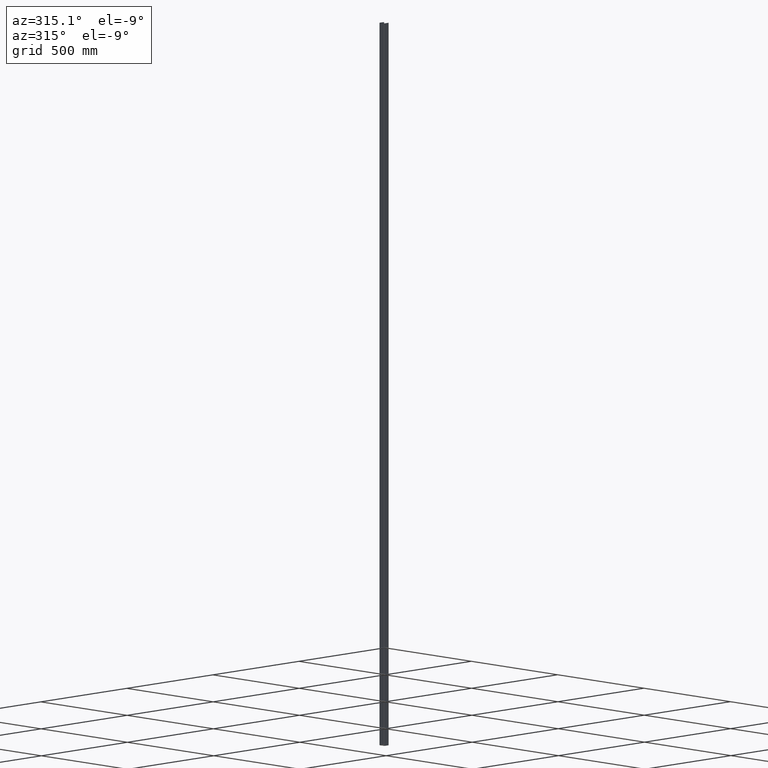
[diagram: clean part render]
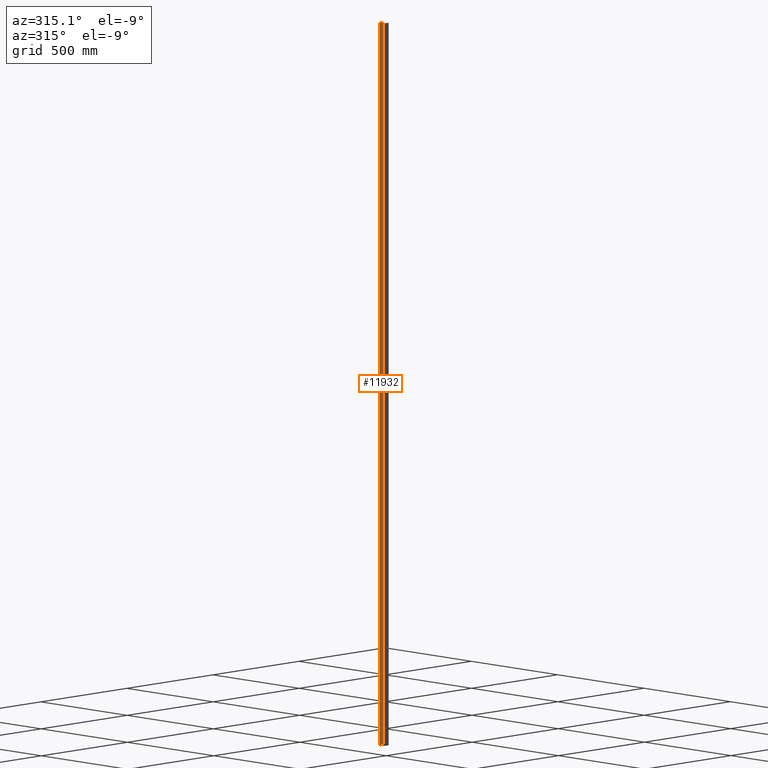
[diagram: same view with one face highlighted and labeled with its STEP entity id]
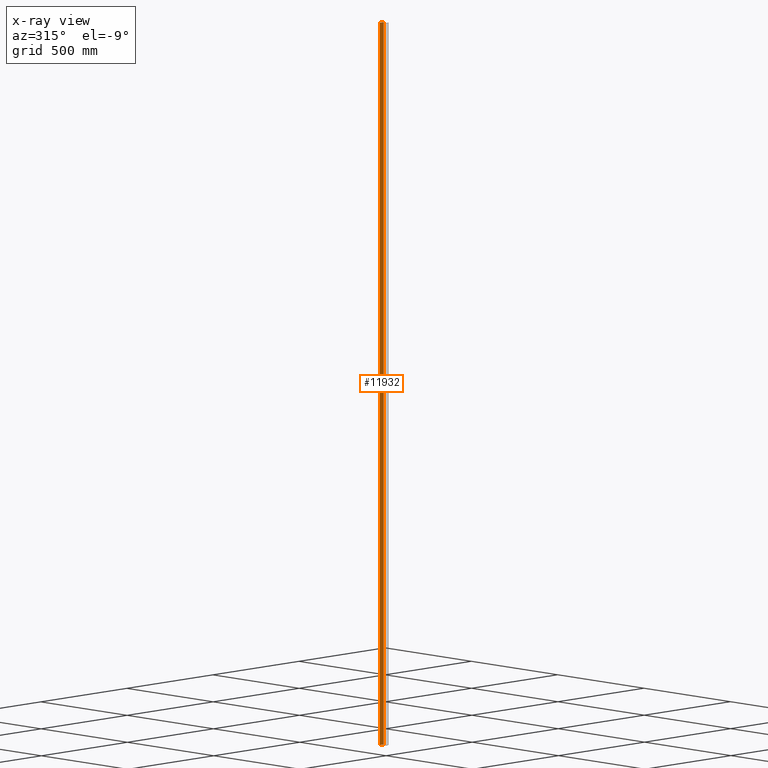
[diagram: x-ray of the same camera — body ghosted, the highlighted face saturated]
A machine part, auxiliary view. The second image highlights one B-rep face of the part: STEP entity #11932.
The next image is the same camera in x-ray: the body ghosted, the highlighted face saturated — about 0% of this face is hidden behind the body in this view.
In plain terms, the highlighted planar face has unit normal (-1, -0, 0).
Its self-contained STEP definition (entity closure, byte-faithful):
#148 = DIRECTION ( 'NONE',  ( -1.476360405086644309E-16, 1.000000000000000000, 0.000000000000000000 ) ) ;
#223 = EDGE_CURVE ( 'NONE', #7487, #6303, #5397, .T. ) ;
#434 = VECTOR ( 'NONE', #148, 1000.000000000000000 ) ;
#621 = VECTOR ( 'NONE', #12958, 1000.000000000000000 ) ;
#1189 = CARTESIAN_POINT ( 'NONE',  ( -14.00000000000000000, 0.4999999999999998890, 1500.000000000000000 ) ) ;
#1235 = EDGE_CURVE ( 'NONE', #5123, #7487, #4408, .T. ) ;
#1538 = DIRECTION ( 'NONE',  ( 1.476360405086644309E-16, -1.000000000000000000, 0.000000000000000000 ) ) ;
#2187 = DIRECTION ( 'NONE',  ( -0.000000000000000000, -0.000000000000000000, -1.000000000000000000 ) ) ;
#2550 = AXIS2_PLACEMENT_3D ( 'NONE', #1189, #11779, #1538 ) ;
#2676 = VECTOR ( 'NONE', #9019, 1000.000000000000000 ) ;
#3094 = ORIENTED_EDGE ( 'NONE', *, *, #12303, .F. ) ;
#3179 = CARTESIAN_POINT ( 'NONE',  ( -14.00000000000000355, 24.00000000000000000, 1500.000000000000000 ) ) ;
#3720 = CARTESIAN_POINT ( 'NONE',  ( -14.00000000000000355, 24.00000000000000000, 1500.000000000000000 ) ) ;
#3965 = CARTESIAN_POINT ( 'NONE',  ( -14.00000000000000000, 0.4999999999999998890, 1500.000000000000000 ) ) ;
#4265 = ORIENTED_EDGE ( 'NONE', *, *, #1235, .T. ) ;
#4408 = LINE ( 'NONE', #3965, #2676 ) ;
#4477 = VERTEX_POINT ( 'NONE', #6903 ) ;
#5123 = VERTEX_POINT ( 'NONE', #6653 ) ;
#5397 = LINE ( 'NONE', #3179, #12224 ) ;
#6101 = ORIENTED_EDGE ( 'NONE', *, *, #7939, .F. ) ;
#6303 = VERTEX_POINT ( 'NONE', #10919 ) ;
#6308 = CARTESIAN_POINT ( 'NONE',  ( -14.00000000000000000, 0.4999999999999998890, -1500.000000000000000 ) ) ;
#6653 = CARTESIAN_POINT ( 'NONE',  ( -14.00000000000000000, 0.5000000000000001110, 1500.000000000000000 ) ) ;
#6903 = CARTESIAN_POINT ( 'NONE',  ( -14.00000000000000000, 0.5000000000000001110, -1500.000000000000000 ) ) ;
#7356 = PLANE ( 'NONE',  #2550 ) ;
#7487 = VERTEX_POINT ( 'NONE', #3720 ) ;
#7939 = EDGE_CURVE ( 'NONE', #5123, #4477, #12721, .T. ) ;
#7962 = ORIENTED_EDGE ( 'NONE', *, *, #223, .T. ) ;
#8708 = EDGE_LOOP ( 'NONE', ( #3094, #6101, #4265, #7962 ) ) ;
#9019 = DIRECTION ( 'NONE',  ( -1.476360405086644309E-16, 1.000000000000000000, 0.000000000000000000 ) ) ;
#9468 = FACE_OUTER_BOUND ( 'NONE', #8708, .T. ) ;
#9843 = CARTESIAN_POINT ( 'NONE',  ( -14.00000000000000000, 0.5000000000000001110, 1500.000000000000000 ) ) ;
#10919 = CARTESIAN_POINT ( 'NONE',  ( -14.00000000000000355, 24.00000000000000000, -1500.000000000000000 ) ) ;
#11779 = DIRECTION ( 'NONE',  ( -1.000000000000000000, -1.476360405086644309E-16, 0.000000000000000000 ) ) ;
#11932 = ADVANCED_FACE ( 'NONE', ( #9468 ), #7356, .T. ) ;
#12224 = VECTOR ( 'NONE', #2187, 1000.000000000000000 ) ;
#12303 = EDGE_CURVE ( 'NONE', #4477, #6303, #12846, .T. ) ;
#12721 = LINE ( 'NONE', #9843, #621 ) ;
#12846 = LINE ( 'NONE', #6308, #434 ) ;
#12958 = DIRECTION ( 'NONE',  ( -0.000000000000000000, -0.000000000000000000, -1.000000000000000000 ) ) ;